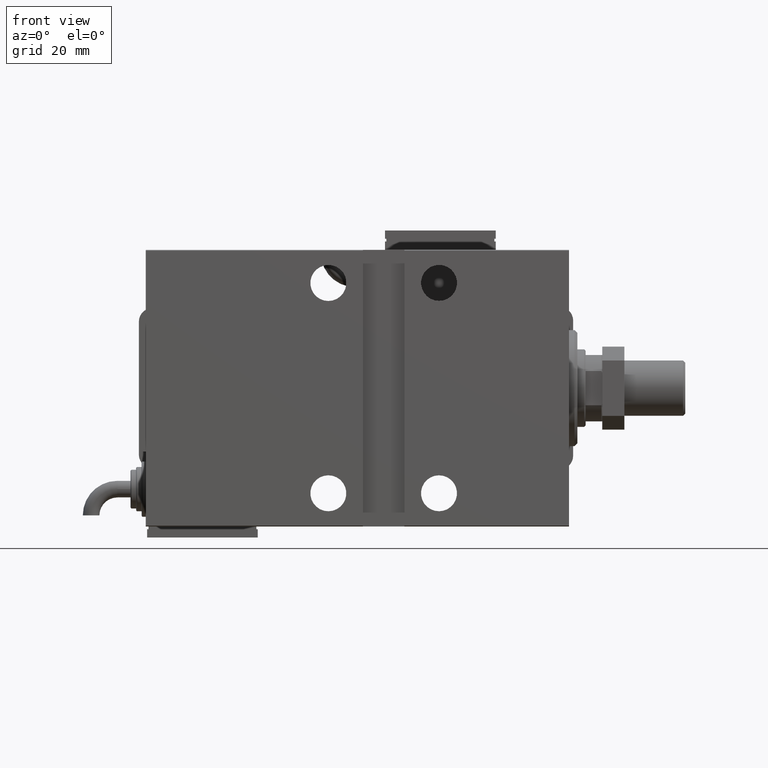
[diagram: clean part render]
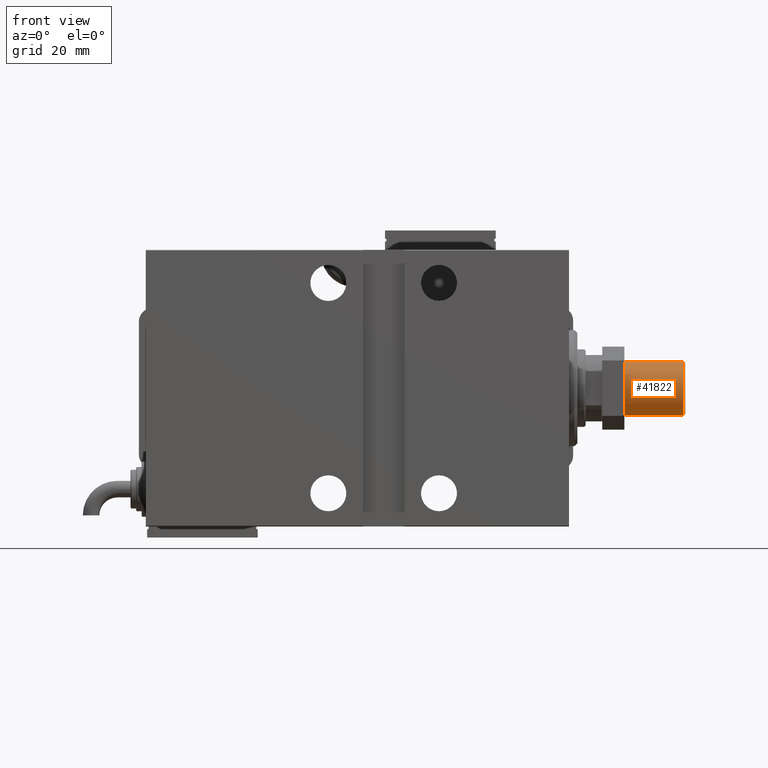
[diagram: same view with one face highlighted and labeled with its STEP entity id]
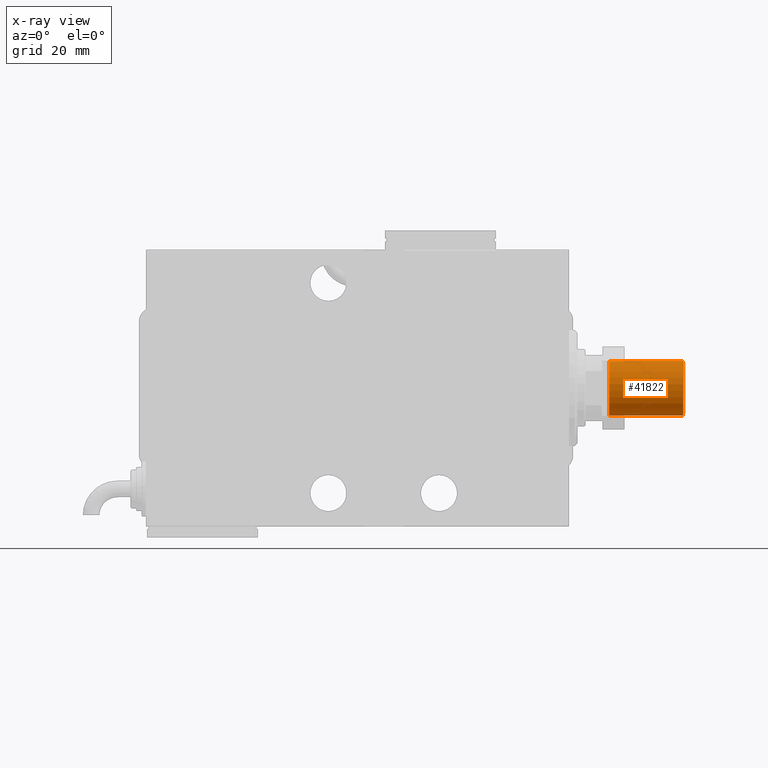
[diagram: x-ray of the same camera — body ghosted, the highlighted face saturated]
A machine part, front view. The second image highlights one B-rep face of the part: STEP entity #41822.
The next image is the same camera in x-ray: the body ghosted, the highlighted face saturated — about 0% of this face is hidden behind the body in this view.
In plain terms, the highlighted cylindrical surface (edge-blend (fillet) strip) has radius 10 mm, axis along (1, 0, -0).
Its self-contained STEP definition (entity closure, byte-faithful):
#3145 = VECTOR ( 'NONE', #24875, 1000.000000000000000 ) ;
#3932 = VECTOR ( 'NONE', #18437, 1000.000000000000000 ) ;
#4625 = DIRECTION ( 'NONE',  ( -0.000000000000000000, -0.000000000000000000, -1.000000000000000000 ) ) ;
#4916 = CARTESIAN_POINT ( 'NONE',  ( 0.000000000000000000, 0.000000000000000000, 27.50000000000000000 ) ) ;
#7261 = CARTESIAN_POINT ( 'NONE',  ( -10.00000000000000000, 0.000000000000000000, 27.50000000000000000 ) ) ;
#8584 = DIRECTION ( 'NONE',  ( 0.000000000000000000, 0.000000000000000000, 1.000000000000000000 ) ) ;
#8634 = CARTESIAN_POINT ( 'NONE',  ( -10.00000000000000000, 0.000000000000000000, 0.7999999999999986011 ) ) ;
#9702 = ORIENTED_EDGE ( 'NONE', *, *, #25094, .F. ) ;
#10725 = DIRECTION ( 'NONE',  ( 1.000000000000000000, 0.000000000000000000, 0.000000000000000000 ) ) ;
#11224 = VERTEX_POINT ( 'NONE', #42647 ) ;
#13444 = CARTESIAN_POINT ( 'NONE',  ( 0.000000000000000000, 0.000000000000000000, 27.50000000000000000 ) ) ;
#18017 = DIRECTION ( 'NONE',  ( -1.000000000000000000, 0.000000000000000000, 0.000000000000000000 ) ) ;
#18437 = DIRECTION ( 'NONE',  ( -0.000000000000000000, -0.000000000000000000, -1.000000000000000000 ) ) ;
#18682 = AXIS2_PLACEMENT_3D ( 'NONE', #13444, #8584, #31998 ) ;
#19839 = VERTEX_POINT ( 'NONE', #8634 ) ;
#20491 = EDGE_CURVE ( 'NONE', #11224, #37926, #37571, .T. ) ;
#20596 = CARTESIAN_POINT ( 'NONE',  ( 10.00000000000000000, 1.224646799147353256E-15, 0.7999999999999986011 ) ) ;
#22573 = CYLINDRICAL_SURFACE ( 'NONE', #55202, 10.00000000000000000 ) ;
#22692 = CARTESIAN_POINT ( 'NONE',  ( 10.00000000000000000, 1.224646799147353256E-15, 27.50000000000000000 ) ) ;
#24875 = DIRECTION ( 'NONE',  ( -0.000000000000000000, -0.000000000000000000, -1.000000000000000000 ) ) ;
#25094 = EDGE_CURVE ( 'NONE', #59227, #11224, #46855, .T. ) ;
#26000 = EDGE_CURVE ( 'NONE', #19839, #37926, #38119, .T. ) ;
#26165 = EDGE_LOOP ( 'NONE', ( #59957, #9702, #41535, #46249 ) ) ;
#28309 = FACE_OUTER_BOUND ( 'NONE', #26165, .T. ) ;
#31998 = DIRECTION ( 'NONE',  ( 1.000000000000000000, 0.000000000000000000, 0.000000000000000000 ) ) ;
#37571 = LINE ( 'NONE', #22692, #3932 ) ;
#37926 = VERTEX_POINT ( 'NONE', #20596 ) ;
#38119 = CIRCLE ( 'NONE', #45920, 10.00000000000000000 ) ;
#41535 = ORIENTED_EDGE ( 'NONE', *, *, #56075, .T. ) ;
#41774 = CARTESIAN_POINT ( 'NONE',  ( 0.000000000000000000, 0.000000000000000000, 0.7999999999999986011 ) ) ;
#41822 = ADVANCED_FACE ( 'NONE', ( #28309 ), #22573, .T. ) ;
#42647 = CARTESIAN_POINT ( 'NONE',  ( 10.00000000000000000, 1.224646799147353256E-15, 27.50000000000000000 ) ) ;
#45920 = AXIS2_PLACEMENT_3D ( 'NONE', #41774, #55743, #10725 ) ;
#46249 = ORIENTED_EDGE ( 'NONE', *, *, #26000, .T. ) ;
#46855 = CIRCLE ( 'NONE', #18682, 10.00000000000000000 ) ;
#52007 = CARTESIAN_POINT ( 'NONE',  ( -10.00000000000000000, 0.000000000000000000, 27.50000000000000000 ) ) ;
#52864 = LINE ( 'NONE', #7261, #3145 ) ;
#55202 = AXIS2_PLACEMENT_3D ( 'NONE', #4916, #4625, #18017 ) ;
#55743 = DIRECTION ( 'NONE',  ( -0.000000000000000000, -0.000000000000000000, 1.000000000000000000 ) ) ;
#56075 = EDGE_CURVE ( 'NONE', #59227, #19839, #52864, .T. ) ;
#59227 = VERTEX_POINT ( 'NONE', #52007 ) ;
#59957 = ORIENTED_EDGE ( 'NONE', *, *, #20491, .F. ) ;